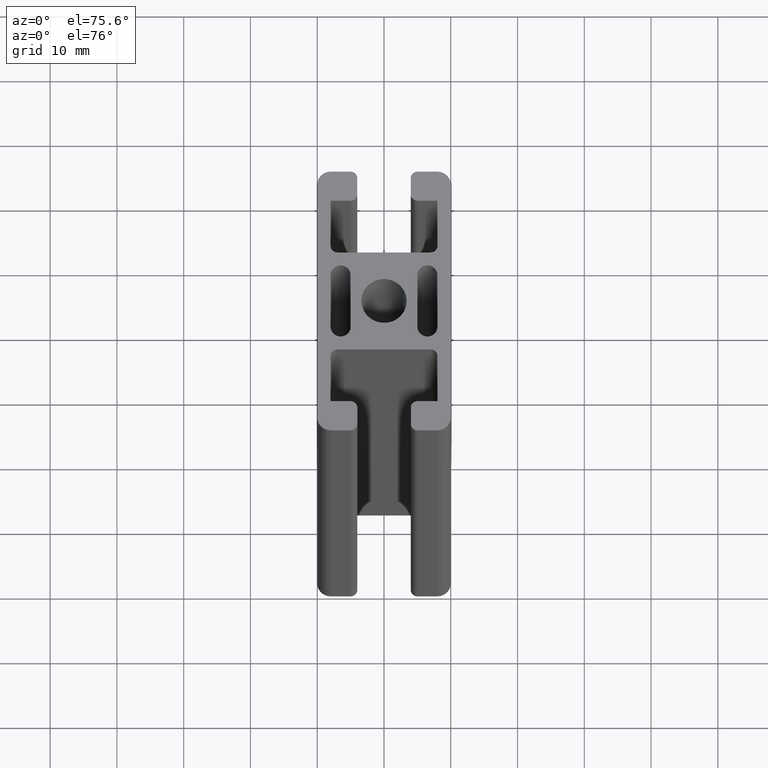
[diagram: clean part render]
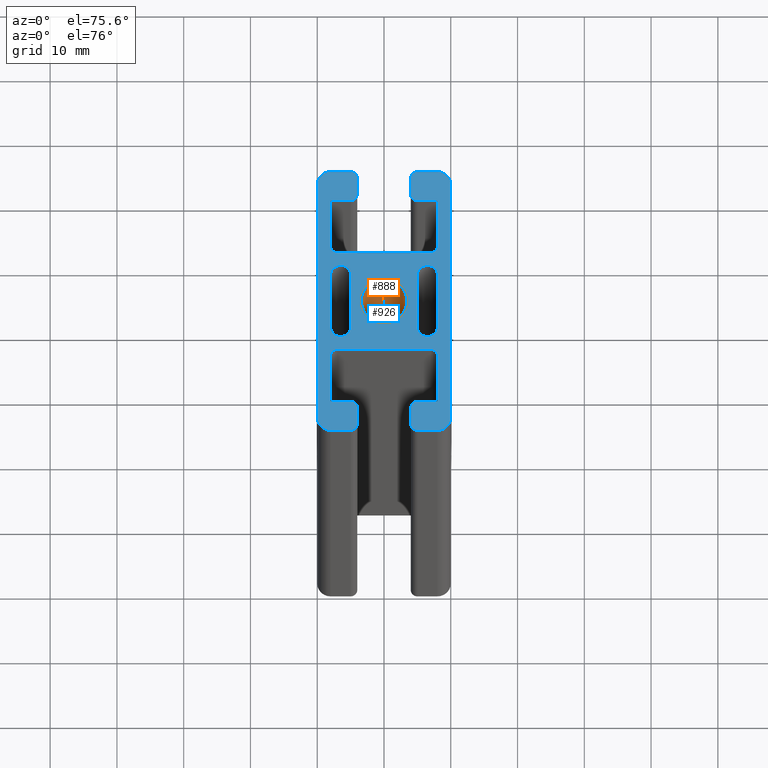
[diagram: same view with the hole feature highlighted: cylindrical wall and planar end face, labeled with their STEP entity ids]
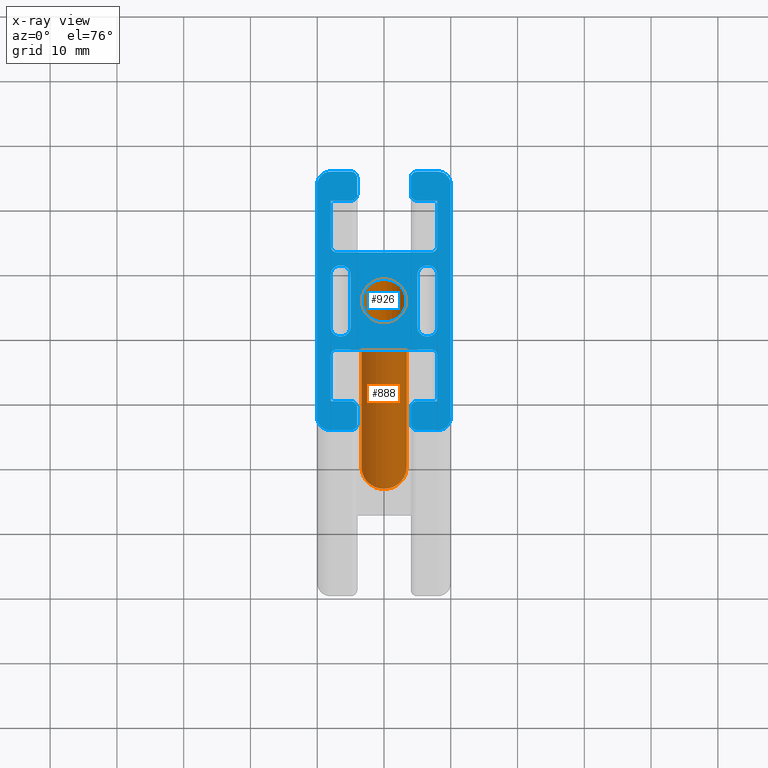
[diagram: x-ray of the same camera — body ghosted, the hole faces saturated]
A machine part, auxiliary view. The highlighted faces form one hole feature of diameter 6.8 mm: the cylindrical wall (entity #888, orange) and its adjacent planar end face (entity #926, blue) — they share a circular edge in the B-rep.
The next image is the same camera in x-ray (body ghosted, the hole faces saturated) — the bore reads through the body.
Wall:
#225=FACE_BOUND('',#280,.T.);
#232=FACE_OUTER_BOUND('',#279,.T.);
#279=EDGE_LOOP('',(#599));
#280=EDGE_LOOP('',(#600));
#333=CIRCLE('',#938,3.4);
#334=CIRCLE('',#939,3.4);
#375=VERTEX_POINT('',#1300);
#376=VERTEX_POINT('',#1302);
#465=EDGE_CURVE('',#375,#375,#333,.T.);
#466=EDGE_CURVE('',#376,#376,#334,.T.);
#599=ORIENTED_EDGE('',*,*,#465,.F.);
#600=ORIENTED_EDGE('',*,*,#466,.F.);
#867=CYLINDRICAL_SURFACE('',#937,3.4);
#888=ADVANCED_FACE('',(#232,#225),#867,.F.);
#937=AXIS2_PLACEMENT_3D('',#1299,#1028,#1029);
#938=AXIS2_PLACEMENT_3D('',#1301,#1030,#1031);
#939=AXIS2_PLACEMENT_3D('',#1303,#1032,#1033);
#1028=DIRECTION('center_axis',(0.,0.,1.));
#1029=DIRECTION('ref_axis',(-1.,0.,0.));
#1030=DIRECTION('center_axis',(0.,0.,-1.));
#1031=DIRECTION('ref_axis',(-1.,0.,0.));
#1032=DIRECTION('center_axis',(0.,0.,1.));
#1033=DIRECTION('ref_axis',(-1.,0.,0.));
#1299=CARTESIAN_POINT('Origin',(0.,0.,0.));
#1300=CARTESIAN_POINT('',(3.4,-4.163799117101E-16,100.));
#1301=CARTESIAN_POINT('Origin',(0.,0.,100.));
#1302=CARTESIAN_POINT('',(3.4,4.163799117101E-16,0.));
#1303=CARTESIAN_POINT('Origin',(0.,0.,0.));
End face:
#15=LINE('',#1307,#107);
#19=LINE('',#1315,#111);
#23=LINE('',#1327,#115);
#29=LINE('',#1348,#121);
#33=LINE('',#1360,#125);
#36=LINE('',#1366,#128);
#40=LINE('',#1378,#132);
#45=LINE('',#1396,#137);
#49=LINE('',#1408,#141);
#52=LINE('',#1414,#144);
#56=LINE('',#1426,#148);
#62=LINE('',#1447,#154);
#66=LINE('',#1459,#158);
#69=LINE('',#1464,#161);
#73=LINE('',#1477,#165);
#77=LINE('',#1488,#169);
#81=LINE('',#1501,#173);
#85=LINE('',#1512,#177);
#89=LINE('',#1519,#181);
#92=LINE('',#1525,#184);
#93=LINE('',#1528,#185);
#96=LINE('',#1536,#188);
#97=LINE('',#1541,#189);
#98=LINE('',#1544,#190);
#107=VECTOR('',#1036,7.00000199595284);
#111=VECTOR('',#1042,3.00000199595297);
#115=VECTOR('',#1054,2.50000399190596);
#121=VECTOR('',#1074,2.50000399190595);
#125=VECTOR('',#1086,3.00000199595298);
#128=VECTOR('',#1091,7.00000199595285);
#132=VECTOR('',#1103,14.0000039919057);
#137=VECTOR('',#1122,14.0000039919057);
#141=VECTOR('',#1134,7.00000199595284);
#144=VECTOR('',#1139,3.00000199595297);
#148=VECTOR('',#1151,2.50000399190596);
#154=VECTOR('',#1171,2.50000399190596);
#158=VECTOR('',#1183,3.00000199595298);
#161=VECTOR('',#1188,7.00000199595284);
#165=VECTOR('',#1200,8.);
#169=VECTOR('',#1212,8.);
#173=VECTOR('',#1224,8.);
#177=VECTOR('',#1236,8.);
#181=VECTOR('',#1242,3.00000199595298);
#184=VECTOR('',#1247,3.00000199595298);
#185=VECTOR('',#1250,3.000001995953);
#188=VECTOR('',#1257,36.);
#189=VECTOR('',#1262,36.);
#190=VECTOR('',#1265,3.00000199595299);
#220=PLANE('',#1009);
#226=FACE_BOUND('',#319,.T.);
#227=FACE_BOUND('',#320,.T.);
#228=FACE_BOUND('',#321,.T.);
#270=FACE_OUTER_BOUND('',#318,.T.);
#318=EDGE_LOOP('',(#749,#750,#751,#752,#753,#754,#755,#756,#757,#758,#759,
#760,#761,#762,#763,#764,#765,#766,#767,#768,#769,#770,#771,#772,#773,#774,
#775,#776,#777,#778,#779,#780,#781,#782,#783,#784));
#319=EDGE_LOOP('',(#785,#786,#787,#788));
#320=EDGE_LOOP('',(#789,#790,#791,#792));
#321=EDGE_LOOP('',(#793));
#333=CIRCLE('',#938,3.4);
#335=CIRCLE('',#943,0.999998004047022);
#337=CIRCLE('',#947,0.99999800404702);
#339=CIRCLE('',#950,0.999998004047022);
#341=CIRCLE('',#954,0.999998004047022);
#343=CIRCLE('',#959,0.999998004047153);
#345=CIRCLE('',#963,0.99999800404715);
#347=CIRCLE('',#966,0.999998004047153);
#349=CIRCLE('',#970,0.999998004047152);
#351=CIRCLE('',#975,0.999998004047026);
#353=CIRCLE('',#979,0.999998004047015);
#355=CIRCLE('',#982,0.999998004047022);
#357=CIRCLE('',#986,0.999998004047022);
#359=CIRCLE('',#991,1.5);
#361=CIRCLE('',#995,1.5);
#363=CIRCLE('',#999,1.5);
#365=CIRCLE('',#1003,1.5);
#367=CIRCLE('',#1010,2.);
#368=CIRCLE('',#1011,2.);
#369=CIRCLE('',#1012,2.);
#370=CIRCLE('',#1013,2.);
#375=VERTEX_POINT('',#1300);
#377=VERTEX_POINT('',#1305);
#378=VERTEX_POINT('',#1306);
#381=VERTEX_POINT('',#1314);
#383=VERTEX_POINT('',#1320);
#385=VERTEX_POINT('',#1326);
#387=VERTEX_POINT('',#1332);
#389=VERTEX_POINT('',#1338);
#390=VERTEX_POINT('',#1339);
#393=VERTEX_POINT('',#1347);
#395=VERTEX_POINT('',#1353);
#397=VERTEX_POINT('',#1359);
#399=VERTEX_POINT('',#1365);
#401=VERTEX_POINT('',#1371);
#403=VERTEX_POINT('',#1377);
#405=VERTEX_POINT('',#1386);
#406=VERTEX_POINT('',#1387);
#409=VERTEX_POINT('',#1395);
#411=VERTEX_POINT('',#1401);
#413=VERTEX_POINT('',#1407);
#415=VERTEX_POINT('',#1413);
#417=VERTEX_POINT('',#1419);
#419=VERTEX_POINT('',#1425);
#421=VERTEX_POINT('',#1431);
#423=VERTEX_POINT('',#1437);
#424=VERTEX_POINT('',#1438);
#427=VERTEX_POINT('',#1446);
#429=VERTEX_POINT('',#1452);
#431=VERTEX_POINT('',#1458);
#433=VERTEX_POINT('',#1467);
#434=VERTEX_POINT('',#1468);
#437=VERTEX_POINT('',#1476);
#439=VERTEX_POINT('',#1482);
#441=VERTEX_POINT('',#1491);
#442=VERTEX_POINT('',#1492);
#445=VERTEX_POINT('',#1500);
#447=VERTEX_POINT('',#1506);
#450=VERTEX_POINT('',#1517);
#452=VERTEX_POINT('',#1523);
#453=VERTEX_POINT('',#1527);
#455=VERTEX_POINT('',#1533);
#456=VERTEX_POINT('',#1535);
#457=VERTEX_POINT('',#1538);
#458=VERTEX_POINT('',#1540);
#459=VERTEX_POINT('',#1542);
#465=EDGE_CURVE('',#375,#375,#333,.T.);
#467=EDGE_CURVE('',#377,#378,#15,.T.);
#471=EDGE_CURVE('',#378,#381,#19,.T.);
#474=EDGE_CURVE('',#381,#383,#335,.T.);
#477=EDGE_CURVE('',#383,#385,#23,.T.);
#480=EDGE_CURVE('',#385,#387,#337,.T.);
#483=EDGE_CURVE('',#389,#390,#339,.T.);
#487=EDGE_CURVE('',#390,#393,#29,.T.);
#490=EDGE_CURVE('',#393,#395,#341,.T.);
#493=EDGE_CURVE('',#395,#397,#33,.T.);
#496=EDGE_CURVE('',#397,#399,#36,.T.);
#499=EDGE_CURVE('',#399,#401,#343,.T.);
#502=EDGE_CURVE('',#401,#403,#40,.T.);
#505=EDGE_CURVE('',#403,#377,#345,.T.);
#507=EDGE_CURVE('',#405,#406,#347,.T.);
#511=EDGE_CURVE('',#409,#405,#45,.T.);
#514=EDGE_CURVE('',#411,#409,#349,.T.);
#517=EDGE_CURVE('',#413,#411,#49,.T.);
#520=EDGE_CURVE('',#415,#413,#52,.T.);
#523=EDGE_CURVE('',#417,#415,#351,.T.);
#526=EDGE_CURVE('',#419,#417,#56,.T.);
#529=EDGE_CURVE('',#421,#419,#353,.T.);
#532=EDGE_CURVE('',#423,#424,#355,.T.);
#536=EDGE_CURVE('',#427,#423,#62,.T.);
#539=EDGE_CURVE('',#429,#427,#357,.T.);
#542=EDGE_CURVE('',#431,#429,#66,.T.);
#545=EDGE_CURVE('',#406,#431,#69,.T.);
#547=EDGE_CURVE('',#433,#434,#359,.T.);
#551=EDGE_CURVE('',#434,#437,#73,.T.);
#554=EDGE_CURVE('',#437,#439,#361,.T.);
#557=EDGE_CURVE('',#439,#433,#77,.T.);
#559=EDGE_CURVE('',#441,#442,#363,.T.);
#563=EDGE_CURVE('',#445,#441,#81,.T.);
#566=EDGE_CURVE('',#447,#445,#365,.T.);
#569=EDGE_CURVE('',#442,#447,#85,.T.);
#573=EDGE_CURVE('',#450,#387,#89,.T.);
#576=EDGE_CURVE('',#452,#424,#92,.T.);
#577=EDGE_CURVE('',#421,#453,#93,.T.);
#580=EDGE_CURVE('',#455,#450,#367,.T.);
#581=EDGE_CURVE('',#456,#455,#96,.T.);
#582=EDGE_CURVE('',#453,#456,#368,.T.);
#583=EDGE_CURVE('',#457,#452,#369,.T.);
#584=EDGE_CURVE('',#458,#457,#97,.T.);
#585=EDGE_CURVE('',#459,#458,#370,.T.);
#586=EDGE_CURVE('',#389,#459,#98,.T.);
#749=ORIENTED_EDGE('',*,*,#483,.T.);
#750=ORIENTED_EDGE('',*,*,#487,.T.);
#751=ORIENTED_EDGE('',*,*,#490,.T.);
#752=ORIENTED_EDGE('',*,*,#493,.T.);
#753=ORIENTED_EDGE('',*,*,#496,.T.);
#754=ORIENTED_EDGE('',*,*,#499,.T.);
#755=ORIENTED_EDGE('',*,*,#502,.T.);
#756=ORIENTED_EDGE('',*,*,#505,.T.);
#757=ORIENTED_EDGE('',*,*,#467,.T.);
#758=ORIENTED_EDGE('',*,*,#471,.T.);
#759=ORIENTED_EDGE('',*,*,#474,.T.);
#760=ORIENTED_EDGE('',*,*,#477,.T.);
#761=ORIENTED_EDGE('',*,*,#480,.T.);
#762=ORIENTED_EDGE('',*,*,#573,.F.);
#763=ORIENTED_EDGE('',*,*,#580,.F.);
#764=ORIENTED_EDGE('',*,*,#581,.F.);
#765=ORIENTED_EDGE('',*,*,#582,.F.);
#766=ORIENTED_EDGE('',*,*,#577,.F.);
#767=ORIENTED_EDGE('',*,*,#529,.T.);
#768=ORIENTED_EDGE('',*,*,#526,.T.);
#769=ORIENTED_EDGE('',*,*,#523,.T.);
#770=ORIENTED_EDGE('',*,*,#520,.T.);
#771=ORIENTED_EDGE('',*,*,#517,.T.);
#772=ORIENTED_EDGE('',*,*,#514,.T.);
#773=ORIENTED_EDGE('',*,*,#511,.T.);
#774=ORIENTED_EDGE('',*,*,#507,.T.);
#775=ORIENTED_EDGE('',*,*,#545,.T.);
#776=ORIENTED_EDGE('',*,*,#542,.T.);
#777=ORIENTED_EDGE('',*,*,#539,.T.);
#778=ORIENTED_EDGE('',*,*,#536,.T.);
#779=ORIENTED_EDGE('',*,*,#532,.T.);
#780=ORIENTED_EDGE('',*,*,#576,.F.);
#781=ORIENTED_EDGE('',*,*,#583,.F.);
#782=ORIENTED_EDGE('',*,*,#584,.F.);
#783=ORIENTED_EDGE('',*,*,#585,.F.);
#784=ORIENTED_EDGE('',*,*,#586,.F.);
#785=ORIENTED_EDGE('',*,*,#559,.T.);
#786=ORIENTED_EDGE('',*,*,#569,.T.);
#787=ORIENTED_EDGE('',*,*,#566,.T.);
#788=ORIENTED_EDGE('',*,*,#563,.T.);
#789=ORIENTED_EDGE('',*,*,#547,.T.);
#790=ORIENTED_EDGE('',*,*,#551,.T.);
#791=ORIENTED_EDGE('',*,*,#554,.T.);
#792=ORIENTED_EDGE('',*,*,#557,.T.);
#793=ORIENTED_EDGE('',*,*,#465,.T.);
#926=ADVANCED_FACE('',(#270,#226,#227,#228),#220,.T.);
#938=AXIS2_PLACEMENT_3D('',#1301,#1030,#1031);
#943=AXIS2_PLACEMENT_3D('',#1321,#1047,#1048);
#947=AXIS2_PLACEMENT_3D('',#1333,#1059,#1060);
#950=AXIS2_PLACEMENT_3D('',#1340,#1066,#1067);
#954=AXIS2_PLACEMENT_3D('',#1354,#1079,#1080);
#959=AXIS2_PLACEMENT_3D('',#1372,#1096,#1097);
#963=AXIS2_PLACEMENT_3D('',#1383,#1108,#1109);
#966=AXIS2_PLACEMENT_3D('',#1388,#1114,#1115);
#970=AXIS2_PLACEMENT_3D('',#1402,#1127,#1128);
#975=AXIS2_PLACEMENT_3D('',#1420,#1144,#1145);
#979=AXIS2_PLACEMENT_3D('',#1432,#1156,#1157);
#982=AXIS2_PLACEMENT_3D('',#1439,#1163,#1164);
#986=AXIS2_PLACEMENT_3D('',#1453,#1176,#1177);
#991=AXIS2_PLACEMENT_3D('',#1469,#1192,#1193);
#995=AXIS2_PLACEMENT_3D('',#1483,#1205,#1206);
#999=AXIS2_PLACEMENT_3D('',#1493,#1216,#1217);
#1003=AXIS2_PLACEMENT_3D('',#1507,#1229,#1230);
#1009=AXIS2_PLACEMENT_3D('',#1532,#1253,#1254);
#1010=AXIS2_PLACEMENT_3D('',#1534,#1255,#1256);
#1011=AXIS2_PLACEMENT_3D('',#1537,#1258,#1259);
#1012=AXIS2_PLACEMENT_3D('',#1539,#1260,#1261);
#1013=AXIS2_PLACEMENT_3D('',#1543,#1263,#1264);
#1030=DIRECTION('center_axis',(0.,0.,-1.));
#1031=DIRECTION('ref_axis',(-1.,0.,0.));
#1036=DIRECTION('',(0.,-1.,0.));
#1042=DIRECTION('',(-1.,0.,0.));
#1047=DIRECTION('center_axis',(0.,0.,1.));
#1048=DIRECTION('ref_axis',(0.,-1.,0.));
#1054=DIRECTION('',(-8.881770014925E-16,-1.,0.));
#1059=DIRECTION('center_axis',(0.,0.,1.));
#1060=DIRECTION('ref_axis',(1.,0.,0.));
#1066=DIRECTION('center_axis',(0.,0.,1.));
#1067=DIRECTION('ref_axis',(-4.44090096233013E-15,1.,0.));
#1074=DIRECTION('',(8.88177001492502E-16,1.,0.));
#1079=DIRECTION('center_axis',(0.,0.,1.));
#1080=DIRECTION('ref_axis',(-1.,0.,0.));
#1086=DIRECTION('',(-1.,7.40148190649775E-16,0.));
#1091=DIRECTION('',(0.,1.,0.));
#1096=DIRECTION('center_axis',(0.,0.,-1.));
#1097=DIRECTION('ref_axis',(0.,1.,0.));
#1103=DIRECTION('',(1.,0.,0.));
#1108=DIRECTION('center_axis',(0.,0.,-1.));
#1109=DIRECTION('ref_axis',(1.,-2.22045048116478E-15,0.));
#1114=DIRECTION('center_axis',(0.,0.,-1.));
#1115=DIRECTION('ref_axis',(-1.,0.,0.));
#1122=DIRECTION('',(-1.,0.,0.));
#1127=DIRECTION('center_axis',(0.,0.,-1.));
#1128=DIRECTION('ref_axis',(1.11022524058239E-15,-1.,0.));
#1134=DIRECTION('',(0.,-1.,0.));
#1139=DIRECTION('',(1.,-1.48029638129955E-15,0.));
#1144=DIRECTION('center_axis',(0.,0.,1.));
#1145=DIRECTION('ref_axis',(1.,0.,0.));
#1151=DIRECTION('',(-1.776354002985E-15,-1.,0.));
#1156=DIRECTION('center_axis',(0.,0.,1.));
#1157=DIRECTION('ref_axis',(8.88180192466027E-15,-1.,0.));
#1163=DIRECTION('center_axis',(0.,0.,1.));
#1164=DIRECTION('ref_axis',(-1.,0.,0.));
#1171=DIRECTION('',(-8.881770014925E-16,1.,0.));
#1176=DIRECTION('center_axis',(0.,0.,1.));
#1177=DIRECTION('ref_axis',(4.44090096233013E-15,1.,0.));
#1183=DIRECTION('',(1.,2.9605927625991E-15,0.));
#1188=DIRECTION('',(0.,1.,0.));
#1192=DIRECTION('center_axis',(0.,0.,-1.));
#1193=DIRECTION('ref_axis',(1.,0.,0.));
#1200=DIRECTION('',(0.,-1.,0.));
#1205=DIRECTION('center_axis',(0.,0.,-1.));
#1206=DIRECTION('ref_axis',(-1.,0.,0.));
#1212=DIRECTION('',(-2.77555756156289E-16,1.,0.));
#1216=DIRECTION('center_axis',(0.,0.,-1.));
#1217=DIRECTION('ref_axis',(1.,0.,0.));
#1224=DIRECTION('',(-1.11022302462516E-15,1.,0.));
#1229=DIRECTION('center_axis',(0.,0.,-1.));
#1230=DIRECTION('ref_axis',(-1.,0.,0.));
#1236=DIRECTION('',(5.55111512312578E-16,-1.,0.));
#1242=DIRECTION('',(-1.,8.32667268468868E-16,0.));
#1247=DIRECTION('',(1.,-5.55111512312578E-16,0.));
#1250=DIRECTION('',(1.,-5.55111512312578E-16,0.));
#1253=DIRECTION('center_axis',(0.,0.,1.));
#1254=DIRECTION('ref_axis',(1.,0.,0.));
#1255=DIRECTION('center_axis',(0.,0.,-1.));
#1256=DIRECTION('ref_axis',(-5.55111512312578E-16,-1.,0.));
#1257=DIRECTION('',(-4.31753398465339E-16,-1.,0.));
#1258=DIRECTION('center_axis',(0.,0.,-1.));
#1259=DIRECTION('ref_axis',(1.,0.,0.));
#1260=DIRECTION('center_axis',(0.,0.,-1.));
#1261=DIRECTION('ref_axis',(1.11022302462516E-15,1.,0.));
#1262=DIRECTION('',(3.08395284618099E-17,1.,0.));
#1263=DIRECTION('center_axis',(0.,0.,-1.));
#1264=DIRECTION('ref_axis',(-1.,1.11022302462516E-15,0.));
#1265=DIRECTION('',(-1.,8.32667268468868E-16,0.));
#1300=CARTESIAN_POINT('',(3.4,-4.163799117101E-16,100.));
#1301=CARTESIAN_POINT('Origin',(0.,0.,100.));
#1305=CARTESIAN_POINT('',(8.,-8.49999800404715,100.));
#1306=CARTESIAN_POINT('',(8.,-15.5,100.));
#1307=CARTESIAN_POINT('',(8.,-4.24999900202358,100.));
#1314=CARTESIAN_POINT('',(4.99999800404702,-15.5,100.));
#1315=CARTESIAN_POINT('',(4.,-15.5,100.));
#1320=CARTESIAN_POINT('',(4.,-16.499998004047,100.));
#1321=CARTESIAN_POINT('Origin',(4.99999800404702,-16.499998004047,100.));
#1326=CARTESIAN_POINT('',(4.,-19.000001995953,100.));
#1327=CARTESIAN_POINT('',(4.00000000000001,-8.24999900202351,100.));
#1332=CARTESIAN_POINT('',(4.99999800404701,-20.,100.));
#1333=CARTESIAN_POINT('Origin',(4.99999800404702,-19.000001995953,100.));
#1338=CARTESIAN_POINT('',(-4.99999800404701,-20.,100.));
#1339=CARTESIAN_POINT('',(-4.,-19.000001995953,100.));
#1340=CARTESIAN_POINT('Origin',(-4.99999800404702,-19.000001995953,100.));
#1347=CARTESIAN_POINT('',(-4.,-16.499998004047,100.));
#1348=CARTESIAN_POINT('',(-3.99999999999999,-9.50000099797649,100.));
#1353=CARTESIAN_POINT('',(-4.99999800404702,-15.5,100.));
#1354=CARTESIAN_POINT('Origin',(-4.99999800404702,-16.499998004047,100.));
#1359=CARTESIAN_POINT('',(-8.,-15.5,100.));
#1360=CARTESIAN_POINT('',(-2.49999900202351,-15.5,100.));
#1365=CARTESIAN_POINT('',(-8.,-8.49999800404715,100.));
#1366=CARTESIAN_POINT('',(-8.,-7.75,100.));
#1371=CARTESIAN_POINT('',(-7.00000199595285,-7.5,100.));
#1372=CARTESIAN_POINT('Origin',(-7.00000199595285,-8.49999800404715,100.));
#1377=CARTESIAN_POINT('',(7.00000199595285,-7.5,100.));
#1378=CARTESIAN_POINT('',(-3.50000099797642,-7.5,100.));
#1383=CARTESIAN_POINT('Origin',(7.00000199595285,-8.49999800404715,100.));
#1386=CARTESIAN_POINT('',(-7.00000199595285,7.5,100.));
#1387=CARTESIAN_POINT('',(-8.,8.49999800404715,100.));
#1388=CARTESIAN_POINT('Origin',(-7.00000199595285,8.49999800404715,100.));
#1395=CARTESIAN_POINT('',(7.00000199595285,7.5,100.));
#1396=CARTESIAN_POINT('',(3.50000099797643,7.5,100.));
#1401=CARTESIAN_POINT('',(8.,8.49999800404715,100.));
#1402=CARTESIAN_POINT('Origin',(7.00000199595285,8.49999800404715,100.));
#1407=CARTESIAN_POINT('',(8.,15.5,100.));
#1408=CARTESIAN_POINT('',(8.,7.74999999999999,100.));
#1413=CARTESIAN_POINT('',(4.99999800404703,15.5,100.));
#1414=CARTESIAN_POINT('',(2.49999900202353,15.5,100.));
#1419=CARTESIAN_POINT('',(4.,16.499998004047,100.));
#1420=CARTESIAN_POINT('Origin',(4.99999800404703,16.499998004047,100.));
#1425=CARTESIAN_POINT('',(4.00000000000001,19.000001995953,100.));
#1426=CARTESIAN_POINT('',(3.99999999999999,9.50000099797648,100.));
#1431=CARTESIAN_POINT('',(4.99999800404701,20.,100.));
#1432=CARTESIAN_POINT('Origin',(4.99999800404702,19.000001995953,100.));
#1437=CARTESIAN_POINT('',(-3.99999999999999,19.000001995953,100.));
#1438=CARTESIAN_POINT('',(-4.99999800404701,20.,100.));
#1439=CARTESIAN_POINT('Origin',(-4.99999800404702,19.000001995953,100.));
#1446=CARTESIAN_POINT('',(-3.99999999999999,16.499998004047,100.));
#1447=CARTESIAN_POINT('',(-3.99999999999999,8.24999900202351,100.));
#1452=CARTESIAN_POINT('',(-4.99999800404702,15.5,100.));
#1453=CARTESIAN_POINT('Origin',(-4.99999800404701,16.499998004047,100.));
#1458=CARTESIAN_POINT('',(-8.,15.5,100.));
#1459=CARTESIAN_POINT('',(-4.00000000000002,15.5,100.));
#1464=CARTESIAN_POINT('',(-8.,4.24999900202357,100.));
#1467=CARTESIAN_POINT('',(5.,4.,100.));
#1468=CARTESIAN_POINT('',(8.,4.,100.));
#1469=CARTESIAN_POINT('Origin',(6.5,4.,100.));
#1476=CARTESIAN_POINT('',(8.,-4.,100.));
#1477=CARTESIAN_POINT('',(8.,2.,100.));
#1482=CARTESIAN_POINT('',(5.,-4.,100.));
#1483=CARTESIAN_POINT('Origin',(6.5,-4.,100.));
#1488=CARTESIAN_POINT('',(5.,-2.,100.));
#1491=CARTESIAN_POINT('',(-8.,4.,100.));
#1492=CARTESIAN_POINT('',(-5.,4.,100.));
#1493=CARTESIAN_POINT('Origin',(-6.5,4.,100.));
#1500=CARTESIAN_POINT('',(-7.99999999999999,-4.,100.));
#1501=CARTESIAN_POINT('',(-7.99999999999999,-2.00000000000001,100.));
#1506=CARTESIAN_POINT('',(-5.,-4.,100.));
#1507=CARTESIAN_POINT('Origin',(-6.49999999999999,-4.,100.));
#1512=CARTESIAN_POINT('',(-5.,2.,100.));
#1517=CARTESIAN_POINT('',(8.,-20.,100.));
#1519=CARTESIAN_POINT('',(-4.00000000000001,-20.,100.));
#1523=CARTESIAN_POINT('',(-8.,20.,100.));
#1525=CARTESIAN_POINT('',(4.00000000000002,20.,100.));
#1527=CARTESIAN_POINT('',(8.00000000000001,20.,100.));
#1528=CARTESIAN_POINT('',(4.00000000000002,20.,100.));
#1532=CARTESIAN_POINT('Origin',(6.66133814775094E-15,-4.44089209850063E-15,
100.));
#1533=CARTESIAN_POINT('',(10.,-18.,100.));
#1534=CARTESIAN_POINT('Origin',(8.,-18.,100.));
#1535=CARTESIAN_POINT('',(10.,18.,100.));
#1536=CARTESIAN_POINT('',(10.,-9.00000000000001,100.));
#1537=CARTESIAN_POINT('Origin',(8.00000000000001,18.,100.));
#1538=CARTESIAN_POINT('',(-10.,18.,100.));
#1539=CARTESIAN_POINT('Origin',(-8.,18.,100.));
#1540=CARTESIAN_POINT('',(-10.,-18.,100.));
#1541=CARTESIAN_POINT('',(-10.,9.,100.));
#1542=CARTESIAN_POINT('',(-8.,-20.,100.));
#1543=CARTESIAN_POINT('Origin',(-8.,-18.,100.));
#1544=CARTESIAN_POINT('',(-4.00000000000001,-20.,100.));